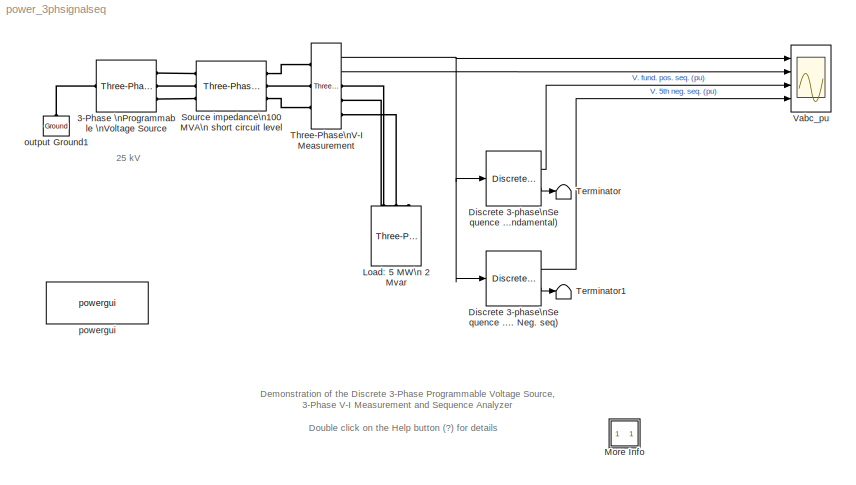
MODEL power_3phsignalseq
KIND model
BLOCK [Reference] 3-Phase \nProgrammable \nVoltage Source  REF=powerlib/Electrical\nSources/Three-Phase\nProgrammable\nVoltage Source
  Amplitudes = [1 0.8 1.2 1.0]
  HarmonicA = [5 0.08 -45 2]
  HarmonicB = [2 0 0 2]
  HarmonicGeneration = on
  Ports = [0, 0, 0, 0, 0, 1, 3]
  PositiveSequence = [25e3 0  60]
  ShowPortLabels = on
  SourceBlock = powerlib/Electrical\nSources/Three-Phase\nProgrammable\nVoltage Source
  SourceType = Three-Phase Programmable Voltage Source
  TimeValues = [0 0.1 0.15 0.2]
  Timing = [0.1  1]
  VariationEntity = Amplitude
  VariationFrequency = 2
  VariationMagnitude = 0.3
  VariationPhaseA = off
  VariationRate = 10
  VariationStep = 0.5
  VariationTiming = [0.05 1]
  VariationType = Step
BLOCK [Reference] Discrete 3-phase\nSequence Analyzer\n(5th harm. Neg. seq)  REF=powerlib_extras/Discrete\nMeasurements/Discrete 3-phase\nSequence Analyzer
  Freq = 60
  Par_Init = [0 0]
  Ports = [1, 2]
  ShowPortLabels = on
  SourceBlock = powerlib_extras/Discrete\nMeasurements/Discrete 3-phase\nSequence Analyzer
  SourceType = Discrete 3-Phase Sequence Analyzer
  Ts = 50e-6
  n = 5
  seq = Negative
BLOCK [Reference] Discrete 3-phase\nSequence Analyzer\n(Fundamental)  REF=powerlib_extras/Discrete\nMeasurements/Discrete 3-phase\nSequence Analyzer
  Freq = 60
  Par_Init = [0 0]
  Ports = [1, 2]
  ShowPortLabels = on
  SourceBlock = powerlib_extras/Discrete\nMeasurements/Discrete 3-phase\nSequence Analyzer
  SourceType = Discrete 3-Phase Sequence Analyzer
  Ts = 50e-6
  n = 1
  seq = Positive
BLOCK [Reference] Load: 5 MW\n 2 Mvar  REF=powerlib/Elements/Three-Phase\nParallel RLC Load
  ActivePower = 5e6
  AttributesFormatString = \\n
  CapacitivePower = 2e6
  Configuration = Y (grounded)
  InductivePower = 0
  LConnTagsString = A|B|C
  LeftPortType = p1
  Measurements = None
  NominalFrequency = 60
  NominalVoltage = 25e3
  PhysicalDomain = powersysdomain
  Ports = [0, 0, 0, 0, 0, 3]
  RightPortType = p1
  SourceBlock = powerlib/Elements/Three-Phase\nParallel RLC Load
  SourceType = Three-Phase Parallel RLC Load
  SubClassName = unknown
BLOCK [SubSystem] More Info
  MaskDisplay = disp('?')
  MaskIconFrame = on
  MaskIconOpaque = on
  MaskIconRotate = none
  MaskIconUnits = autoscale
  MinAlgLoopOccurrences = off
  Ports = []
  RTWSystemCode = Auto
  TreatAsAtomicUnit = off
BLOCK [Reference] Source impedance\n100 MVA\n short circuit level  REF=powerlib/Elements/Three-Phase\nSeries RLC Branch
  AttributesFormatString = \\n
  Capacitance = inf
  Inductance = 25^2/100/377
  LConnTagsString = A|B|C
  LeftPortType = p1
  Measurements = None
  PhysicalDomain = powersysdomain
  Ports = [0, 0, 0, 0, 0, 3, 3]
  RConnTagsString = A|B|C
  Resistance = 25^2/100/10
  RightPortType = p1
  SourceBlock = powerlib/Elements/Three-Phase\nSeries RLC Branch
  SourceType = Three-Phase Series RLC Branch
  SubClassName = unknown
BLOCK [Terminator] Terminator
BLOCK [Terminator] Terminator1
BLOCK [Reference] Three-Phase\nV-I Measurement  REF=powerlib/Measurements/Three-Phase\nV-I Measurement
  CurrentMeasurement = yes
  Ipu = on
  LabelI = I1
  LabelV = V1
  OutputType = Magnitude
  PSBequivalent = 0
  Pbase = 10e6
  PhasorSimulation = off
  Ports = [0, 2, 0, 0, 0, 3, 3]
  SetLabelI = off
  SetLabelV = off
  ShowPortLabels = on
  SourceBlock = powerlib/Measurements/Three-Phase\nV-I Measurement
  SourceType = Three-Phase VI Measurement
  Vbase = 25e3
  VoltageMeasurement = phase-to-ground
  Vpu = on
BLOCK [Scope] Vabc_pu
  DataFormat = Array
  LimitDataPoints = off
  NumInputPorts = 4
  Ports = [4]
  SampleInput = on
  TimeRange = 0.2
  YMax = 2~1~2~0.2
  YMin = -2~-2~0~0
  ZoomMode = yonly
BLOCK [Reference] output Ground1  REF=powerlib/Elements/Ground
  AttributesFormatString = \\n
  LConnTagsString = a
  LeftPortType = p1
  PhysicalDomain = powersysdomain
  Ports = [0, 0, 0, 0, 0, 1]
  RightPortType = p1
  SourceBlock = powerlib/Elements/Ground
  SourceType = Ground
  SubClassName = unknown
BLOCK [Reference] powergui  REF=powerlib/powergui
  DisplayStyle = off
  Frange = [0:2:500]
  FreqAxis = off
  MaxFrequency = 1000
  Ports = []
  Priority = 2
  RmsSteady = 1
  ShowPortLabels = on
  SourceBlock = powerlib/powergui
  SourceType = PSB option menu block
  StartTime = 0.0
  Ts = 50e-6
  Xlog = off
  Ylog = off
  ZoomFFT = on
  cycles = 1
  display = off
  echomessages = off
  frequency = 60
  frequencyindice = 1
  frequencyindicesteady = 1
  fundamental = 60
  methode = off
  save = off
  variable = ZData
ANNOTATION (root): 25 kV
ANNOTATION (root): Demonstration of the Discrete 3-Phase Programmable Voltage Source, \n 3-Phase V-I Measurement and Sequence Analyzer
ANNOTATION (root): Double click on the Help button (?) for details
ANNOTATION More Info: A 25kV, 100 MVA short-circuit level, equivalent network feeds a 5MW, 2 Mvar capacitive load.\n\nThe internal voltage of the source is controlled by the Discrete 3-phase Programmable Voltage Source block.\n\nOpen the source dialog box and look at the parameters controlling the voltage. A positive-sequence of \n1.0 pu, 0 degrees is specified. At t = 0.05 s a step of 0.5 pu is applied on positive-seq...<+786ch>
ANNOTATION More Info: Choose Simulation/Start and observe the voltage and current waveforms.\n\nThe simulation starts in steady state with 1 pu voltage. \nAt t = 0.05 sec, the internal voltage is increased to 1.5 pu. At t = 0.10 sec. 0.08 pu of 5th harmonic internal voltage is added.\n\nObserve the fundamental component (pos. seq.) and the 5th harmonic component (neg. seq.) measured by the two sequence analyzers.\nThe ...<+167ch>
ANNOTATION More Info: Circuit Description
ANNOTATION More Info: Demonstration
ANNOTATION More Info: G. Sybille (Hydro-Quebec)
ANNOTATION More Info: This demonstration ilustrates use of the 3-Phase Programmable Voltage Source,\n3-Phase V-I Measurement, and Sequence Analyzer blocks
LINE Discrete 3-phase\nSequence Analyzer\n(5th harm. Neg. seq):1 -> Vabc_pu:4
LINE Discrete 3-phase\nSequence Analyzer\n(5th harm. Neg. seq):2 -> Terminator1:1
LINE Discrete 3-phase\nSequence Analyzer\n(Fundamental):1 -> Vabc_pu:3
LINE Discrete 3-phase\nSequence Analyzer\n(Fundamental):2 -> Terminator:1
NET Three-Phase\nV-I Measurement:1 -> Discrete 3-phase\nSequence Analyzer\n(5th harm. Neg. seq):1, Discrete 3-phase\nSequence Analyzer\n(Fundamental):1, Vabc_pu:1
LINE Three-Phase\nV-I Measurement:2 -> Vabc_pu:2
PLINE 3-Phase \nProgrammable \nVoltage Source:LConn1 -- output Ground1:LConn1
PLINE 3-Phase \nProgrammable \nVoltage Source:RConn1 -- Source impedance\n100 MVA\n short circuit level:LConn1
PLINE 3-Phase \nProgrammable \nVoltage Source:RConn2 -- Source impedance\n100 MVA\n short circuit level:LConn2
PLINE 3-Phase \nProgrammable \nVoltage Source:RConn3 -- Source impedance\n100 MVA\n short circuit level:LConn3
PLINE Load: 5 MW\n 2 Mvar:LConn1 -- Three-Phase\nV-I Measurement:RConn1
PLINE Load: 5 MW\n 2 Mvar:LConn2 -- Three-Phase\nV-I Measurement:RConn2
PLINE Load: 5 MW\n 2 Mvar:LConn3 -- Three-Phase\nV-I Measurement:RConn3
PLINE Source impedance\n100 MVA\n short circuit level:RConn1 -- Three-Phase\nV-I Measurement:LConn1
PLINE Source impedance\n100 MVA\n short circuit level:RConn2 -- Three-Phase\nV-I Measurement:LConn2
PLINE Source impedance\n100 MVA\n short circuit level:RConn3 -- Three-Phase\nV-I Measurement:LConn3
note: NET lines group one-source signal fan-out (src -> all destinations, sorted); 1:1 wires keep LINE
